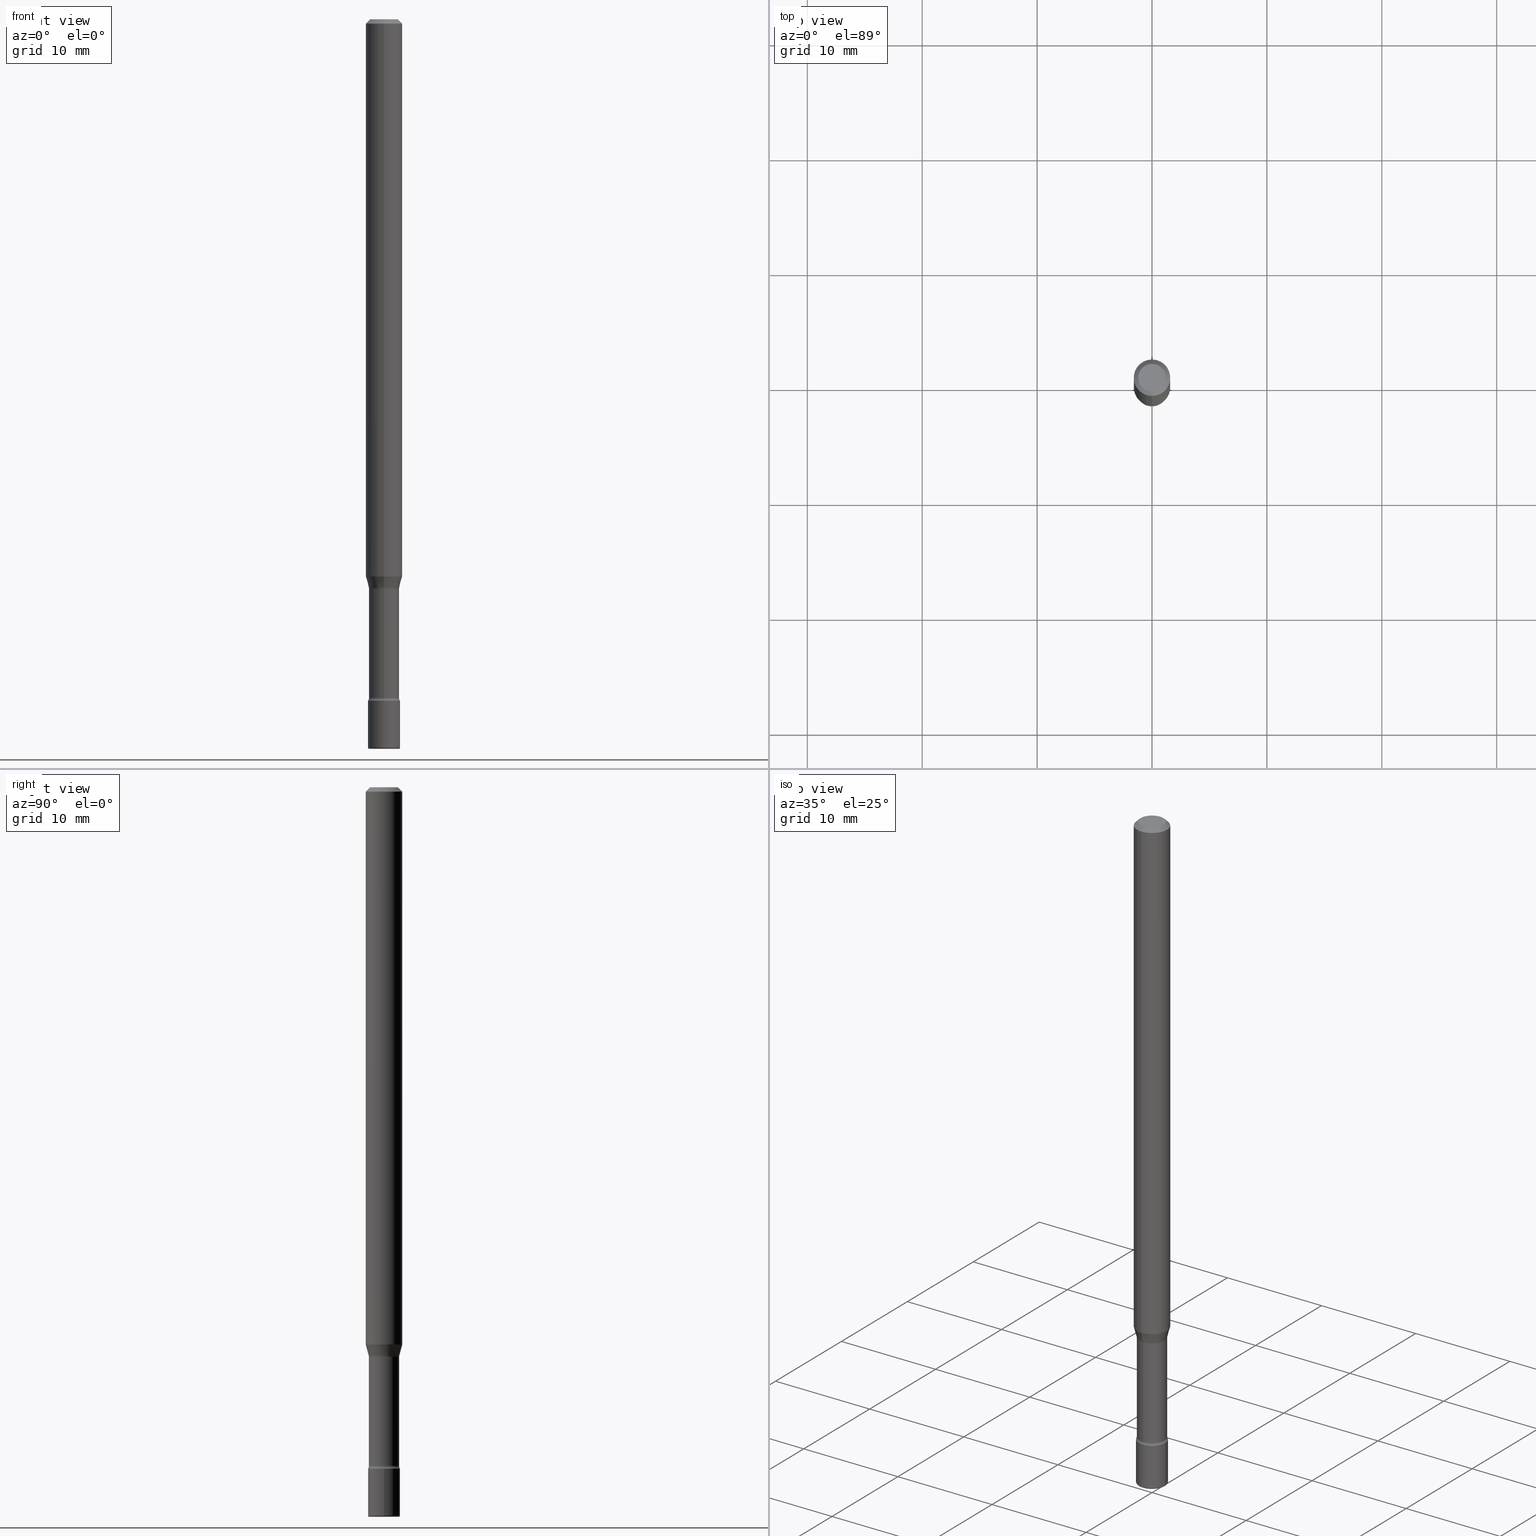
[diagram: canonical four-view strip — front | top / right | iso, engineering-drawing reading convention]
A machine part, canonical four-view strip (front | top / right | iso — engineering-drawing reading convention). The complete STEP part file that produces these views, byte-faithful:
ISO-10303-21;
HEADER;
FILE_DESCRIPTION (( 'STEP AP203' ),
    '1' );
FILE_NAME ('08968.STEP',
    '2024-03-06T20:13:01',
    ( '' ),
    ( '' ),
    'SwSTEP 2.0',
    'SolidWorks 2023',
    '' );
FILE_SCHEMA (( 'CONFIG_CONTROL_DESIGN' ));
ENDSEC;

DATA;
#1 = APPROVAL_ROLE ( '' ) ;
#2 = AXIS2_PLACEMENT_3D ( 'NONE', #156, #561, #392 ) ;
#3 = LINE ( 'NONE', #170, #68 ) ;
#4 = FACE_OUTER_BOUND ( 'NONE', #215, .T. ) ;
#5 = EDGE_LOOP ( 'NONE', ( #14, #91, #257, #425 ) ) ;
#6 = DIRECTION ( 'NONE',  ( -2.445385286950522456E-29, 3.491600943140732554E-15, 1.000000000000000000 ) ) ;
#7 = LOCAL_TIME ( 15, 13, 1.000000000000000000, #168 ) ;
#8 = CIRCLE ( 'NONE', #100, 0.05221111260566398821 ) ;
#9 = AXIS2_PLACEMENT_3D ( 'NONE', #540, #230, #54 ) ;
#10 = DIRECTION ( 'NONE',  ( 1.000000000000000000, -6.982962677686262766E-15, 0.000000000000000000 ) ) ;
#11 = DATE_TIME_ROLE ( 'creation_date' ) ;
#12 = ORIENTED_EDGE ( 'NONE', *, *, #491, .T. ) ;
#13 = FACE_OUTER_BOUND ( 'NONE', #120, .T. ) ;
#14 = ORIENTED_EDGE ( 'NONE', *, *, #437, .T. ) ;
#15 = DIRECTION ( 'NONE',  ( -2.445385286950522456E-29, 3.491600943140732554E-15, 1.000000000000000000 ) ) ;
#16 = APPROVAL_STATUS ( 'not_yet_approved' ) ;
#17 = EDGE_CURVE ( 'NONE', #362, #537, #193, .T. ) ;
#18 = AXIS2_PLACEMENT_3D ( 'NONE', #49, #355, #525 ) ;
#19 = DIRECTION ( 'NONE',  ( -6.982962677686266711E-15, -1.000000000000000000, 4.966996352116842287E-15 ) ) ;
#20 = DIRECTION ( 'NONE',  ( -6.982962677686265922E-15, -1.000000000000000000, 3.491600943140732160E-15 ) ) ;
#21 = CARTESIAN_POINT ( 'NONE',  ( 3.668077930425790463E-31, -5.237401414711108766E-17, -0.01500000000000002720 ) ) ;
#22 = CARTESIAN_POINT ( 'NONE',  ( -0.05000000000000000278, -8.355974572533597921E-15, -2.495000000000000107 ) ) ;
#23 = CARTESIAN_POINT ( 'NONE',  ( 5.687214798230907854E-29, -8.119835463774270932E-15, -2.325613307291702903 ) ) ;
#24 = DIRECTION ( 'NONE',  ( -2.445468806185136597E-29, 3.491481338843145583E-15, 1.000000000000000000 ) ) ;
#25 = AXIS2_PLACEMENT_3D ( 'NONE', #32, #440, #62 ) ;
#26 = LINE ( 'NONE', #71, #28 ) ;
#27 = ORIENTED_EDGE ( 'NONE', *, *, #86, .F. ) ;
#28 = VECTOR ( 'NONE', #236, 39.37007874015748143 ) ;
#29 = EDGE_LOOP ( 'NONE', ( #548, #210, #400, #493 ) ) ;
#30 = CARTESIAN_POINT ( 'NONE',  ( 0.000000000000000000, 0.000000000000000000, 0.000000000000000000 ) ) ;
#31 = DIRECTION ( 'NONE',  ( -6.982962677686265133E-15, -1.000000000000000000, 3.491600943140732554E-15 ) ) ;
#32 = CARTESIAN_POINT ( 'NONE',  ( 0.05000000000000000278, -9.060394074297961665E-15, -2.495000000000000107 ) ) ;
#33 =( GEOMETRIC_REPRESENTATION_CONTEXT ( 3 ) GLOBAL_UNCERTAINTY_ASSIGNED_CONTEXT ( ( #335 ) ) GLOBAL_UNIT_ASSIGNED_CONTEXT ( ( #512, #356, #161 ) ) REPRESENTATION_CONTEXT ( 'NONE', 'WORKASPACE' ) );
#34 = CARTESIAN_POINT ( 'NONE',  ( -4.287811248607203282E-16, -0.06250000000000005551, -0.01499999999999981036 ) ) ;
#35 = AXIS2_PLACEMENT_3D ( 'NONE', #462, #108, #20 ) ;
#36 = ORIENTED_EDGE ( 'NONE', *, *, #429, .F. ) ;
#37 = EDGE_LOOP ( 'NONE', ( #122, #342, #523, #219 ) ) ;
#38 = EDGE_LOOP ( 'NONE', ( #544, #567, #450, #441 ) ) ;
#39 = DIRECTION ( 'NONE',  ( -6.982962677686266711E-15, -1.000000000000000000, 5.284038672464726492E-15 ) ) ;
#40 = DATE_AND_TIME ( #212, #393 ) ;
#41 = EDGE_LOOP ( 'NONE', ( #169, #81 ) ) ;
#42 = ORIENTED_EDGE ( 'NONE', *, *, #258, .F. ) ;
#43 = EDGE_CURVE ( 'NONE', #345, #301, #394, .T. ) ;
#44 = DIRECTION ( 'NONE',  ( -2.445385286950522456E-29, 3.491600943140732554E-15, 1.000000000000000000 ) ) ;
#45 = APPROVAL_STATUS ( 'not_yet_approved' ) ;
#46 = AXIS2_PLACEMENT_3D ( 'NONE', #390, #191, #326 ) ;
#47 = CIRCLE ( 'NONE', #453, 0.05500000000000000028 ) ;
#48 = ORIENTED_EDGE ( 'NONE', *, *, #232, .F. ) ;
#49 = CARTESIAN_POINT ( 'NONE',  ( 4.763836741489232116E-29, -6.801961616565831603E-15, -1.948092501787273001 ) ) ;
#50 = EDGE_CURVE ( 'NONE', #407, #481, #217, .T. ) ;
#51 = FACE_OUTER_BOUND ( 'NONE', #308, .T. ) ;
#52 = CIRCLE ( 'NONE', #165, 0.01500000000000004455 ) ;
#53 = AXIS2_PLACEMENT_3D ( 'NONE', #315, #55, #460 ) ;
#54 = DIRECTION ( 'NONE',  ( 1.000000000000000000, -6.982962677686262766E-15, 0.000000000000000000 ) ) ;
#55 = DIRECTION ( 'NONE',  ( -2.445468806185136597E-29, 3.491481338843145583E-15, 1.000000000000000000 ) ) ;
#56 = PRODUCT ( '08968', '08968', '', ( #478 ) ) ;
#57 = DIRECTION ( 'NONE',  ( -6.982962677686265922E-15, -1.000000000000000000, 3.491600943140732554E-15 ) ) ;
#58 = LINE ( 'NONE', #511, #235 ) ;
#59 = FACE_OUTER_BOUND ( 'NONE', #41, .T. ) ;
#60 = PLANE ( 'NONE',  #465 ) ;
#61 = CARTESIAN_POINT ( 'NONE',  ( 6.618967874996371320E-46, -9.462197470180014889E-32, -2.708350599300407887E-17 ) ) ;
#62 = DIRECTION ( 'NONE',  ( 1.000000000000000000, -6.982962677686075017E-15, 0.000000000000000000 ) ) ;
#63 = DIRECTION ( 'NONE',  ( -2.445385286950522456E-29, 3.491600943140732554E-15, 1.000000000000000000 ) ) ;
#64 = PRODUCT_DEFINITION_SHAPE ( 'NONE', 'NONE',  #549 ) ;
#65 = DIRECTION ( 'NONE',  ( -2.445385286950522456E-29, 3.491600943140732554E-15, 1.000000000000000000 ) ) ;
#66 = ORIENTED_EDGE ( 'NONE', *, *, #358, .T. ) ;
#67 = APPLICATION_PROTOCOL_DEFINITION ( 'international standard', 'config_control_design', 1994, #106 ) ;
#68 = VECTOR ( 'NONE', #352, 39.37007874015748143 ) ;
#69 = CC_DESIGN_DATE_AND_TIME_ASSIGNMENT ( #497, #456, ( #563 ) ) ;
#70 = PERSON ( 'UNSPECIFIED', 'UNSPECIFIED', 'UNSPECIFIED', ('UNSPECIFIED'), ('UNSPECIFIED'), ('UNSPECIFIED') ) ;
#71 = CARTESIAN_POINT ( 'NONE',  ( 4.440892098500625669E-16, 0.06250000000000000000, 2.598483399449503033E-16 ) ) ;
#72 = AXIS2_PLACEMENT_3D ( 'NONE', #268, #138, #366 ) ;
#73 = ADVANCED_FACE ( 'NONE', ( #516 ), #275, .T. ) ;
#74 = DIRECTION ( 'NONE',  ( -6.982962677686265922E-15, -1.000000000000000000, 4.370956789862821150E-15 ) ) ;
#75 = PERSON_AND_ORGANIZATION ( #70, #233 ) ;
#76 = ORIENTED_EDGE ( 'NONE', *, *, #232, .T. ) ;
#77 = ORIENTED_EDGE ( 'NONE', *, *, #17, .F. ) ;
#78 = APPROVAL_PERSON_ORGANIZATION ( #140, #492, #500 ) ;
#79 = CYLINDRICAL_SURFACE ( 'NONE', #155, 0.05169999999999998902 ) ;
#80 = PERSON_AND_ORGANIZATION ( #70, #233 ) ;
#81 = ORIENTED_EDGE ( 'NONE', *, *, #114, .F. ) ;
#82 =( LENGTH_UNIT ( ) NAMED_UNIT ( * ) SI_UNIT ( $, .METRE. ) );
#83 = ORIENTED_EDGE ( 'NONE', *, *, #43, .T. ) ;
#84 = FACE_OUTER_BOUND ( 'NONE', #37, .T. ) ;
#85 = ORIENTED_EDGE ( 'NONE', *, *, #305, .F. ) ;
#86 = EDGE_CURVE ( 'NONE', #407, #329, #58, .T. ) ;
#87 = CARTESIAN_POINT ( 'NONE',  ( 3.668077930425790463E-31, -5.237401414711108766E-17, -0.01500000000000002720 ) ) ;
#88 = AXIS2_PLACEMENT_3D ( 'NONE', #61, #238, #498 ) ;
#89 = DATE_AND_TIME ( #406, #118 ) ;
#90 = AXIS2_PLACEMENT_3D ( 'NONE', #149, #63, #160 ) ;
#91 = ORIENTED_EDGE ( 'NONE', *, *, #86, .T. ) ;
#92 = EDGE_CURVE ( 'NONE', #130, #444, #52, .T. ) ;
#93 = DIRECTION ( 'NONE',  ( -6.982962677686265133E-15, -1.000000000000000000, 3.491600943140732554E-15 ) ) ;
#94 = COORDINATED_UNIVERSAL_TIME_OFFSET ( 5, 0, .BEHIND. ) ;
#95 = EDGE_CURVE ( 'NONE', #130, #223, #499, .T. ) ;
#96 = CC_DESIGN_PERSON_AND_ORGANIZATION_ASSIGNMENT ( #80, #340, ( #549 ) ) ;
#97 = FACE_OUTER_BOUND ( 'NONE', #311, .T. ) ;
#98 = CONICAL_SURFACE ( 'NONE', #291, 0.05221111260566398821, 0.2617993877991500740 ) ;
#99 = ADVANCED_FACE ( 'NONE', ( #113 ), #60, .T. ) ;
#100 = AXIS2_PLACEMENT_3D ( 'NONE', #142, #182, #231 ) ;
#101 = AXIS2_PLACEMENT_3D ( 'NONE', #121, #111, #522 ) ;
#102 = CARTESIAN_POINT ( 'NONE',  ( 4.773493453202611400E-29, -6.815283544322211432E-15, -1.951974787463810923 ) ) ;
#103 = EDGE_CURVE ( 'NONE', #318, #407, #350, .T. ) ;
#104 = EDGE_LOOP ( 'NONE', ( #157, #411, #189, #395 ) ) ;
#105 = CARTESIAN_POINT ( 'NONE',  ( 0.05500000000000000028, -3.840629472727446888E-16, 2.681897226687764826E-30 ) ) ;
#106 = APPLICATION_CONTEXT ( 'configuration controlled 3d designs of mechanical parts and assemblies' ) ;
#107 = CARTESIAN_POINT ( 'NONE',  ( 4.440892098501093562E-16, 0.06249999999999334560, -1.909693851278256416 ) ) ;
#108 = DIRECTION ( 'NONE',  ( -2.445385286950522456E-29, 3.491600943140732554E-15, 1.000000000000000000 ) ) ;
#109 = DIRECTION ( 'NONE',  ( -2.445385286950522456E-29, 3.491600943140732554E-15, 1.000000000000000000 ) ) ;
#110 = DIRECTION ( 'NONE',  ( -2.445468806185136877E-29, 3.491481338843145188E-15, 1.000000000000000000 ) ) ;
#111 = DIRECTION ( 'NONE',  ( 2.445385286950522176E-29, -3.491600943140732554E-15, -1.000000000000000000 ) ) ;
#112 = PERSON_AND_ORGANIZATION_ROLE ( 'design_supplier' ) ;
#113 = FACE_OUTER_BOUND ( 'NONE', #259, .T. ) ;
#114 = EDGE_CURVE ( 'NONE', #318, #570, #154, .T. ) ;
#115 = CARTESIAN_POINT ( 'NONE',  ( 5.709974645029469894E-29, -8.152888202233611695E-15, -2.334999999999999964 ) ) ;
#116 = DIRECTION ( 'NONE',  ( 1.000000000000000000, -6.982962677686279332E-15, 0.000000000000000000 ) ) ;
#117 = AXIS2_PLACEMENT_3D ( 'NONE', #426, #201, #391 ) ;
#118 = LOCAL_TIME ( 15, 13, 1.000000000000000000, #532 ) ;
#119 = FACE_OUTER_BOUND ( 'NONE', #280, .T. ) ;
#120 = EDGE_LOOP ( 'NONE', ( #469, #300, #373, #77 ) ) ;
#121 = CARTESIAN_POINT ( 'NONE',  ( 3.316907271900975110E-16, 0.04749999999999998668, 5.964390164993622742E-17 ) ) ;
#122 = ORIENTED_EDGE ( 'NONE', *, *, #466, .F. ) ;
#123 = DIRECTION ( 'NONE',  ( -6.982962677686265922E-15, -1.000000000000000000, 3.483106191921935554E-15 ) ) ;
#124 = VERTEX_POINT ( 'NONE', #471 ) ;
#125 = AXIS2_PLACEMENT_3D ( 'NONE', #313, #6, #19 ) ;
#126 = CIRCLE ( 'NONE', #88, 0.04749999999999998668 ) ;
#127 = CIRCLE ( 'NONE', #269, 0.05500000000000000028 ) ;
#128 = EDGE_LOOP ( 'NONE', ( #172, #183, #297, #495 ) ) ;
#129 = PRODUCT_RELATED_PRODUCT_CATEGORY ( 'detail', '', ( #56 ) ) ;
#130 = VERTEX_POINT ( 'NONE', #181 ) ;
#131 = PERSON_AND_ORGANIZATION_ROLE ( 'classification_officer' ) ;
#132 = ORIENTED_EDGE ( 'NONE', *, *, #437, .F. ) ;
#133 = ADVANCED_FACE ( 'NONE', ( #188 ), #208, .T. ) ;
#134 = APPROVAL_STATUS ( 'not_yet_approved' ) ;
#135 = AXIS2_PLACEMENT_3D ( 'NONE', #196, #467, #384 ) ;
#136 = ORIENTED_EDGE ( 'NONE', *, *, #568, .F. ) ;
#137 = CARTESIAN_POINT ( 'NONE',  ( 4.773493453202611400E-29, -6.815283544322211432E-15, -1.951974787463810923 ) ) ;
#138 = DIRECTION ( 'NONE',  ( -1.000000000000000000, 6.982962677686265922E-15, -4.883557194083112340E-29 ) ) ;
#139 = ADVANCED_FACE ( 'NONE', ( #13 ), #553, .T. ) ;
#140 = PERSON_AND_ORGANIZATION ( #70, #233 ) ;
#141 = ORIENTED_EDGE ( 'NONE', *, *, #247, .T. ) ;
#142 = CARTESIAN_POINT ( 'NONE',  ( 4.763836741489232116E-29, -6.801961616565831603E-15, -1.948092501787273001 ) ) ;
#143 = CIRCLE ( 'NONE', #472, 0.05169999999999998902 ) ;
#144 = AXIS2_PLACEMENT_3D ( 'NONE', #115, #109, #327 ) ;
#145 = DIRECTION ( 'NONE',  ( -2.445385286950522176E-29, 3.491600943140732554E-15, 1.000000000000000000 ) ) ;
#146 = ADVANCED_FACE ( 'NONE', ( #51 ), #383, .F. ) ;
#147 = FACE_OUTER_BOUND ( 'NONE', #128, .T. ) ;
#148 = DIRECTION ( 'NONE',  ( 1.000000000000000000, -6.982962677686273810E-15, 4.883557194083115143E-29 ) ) ;
#149 = CARTESIAN_POINT ( 'NONE',  ( 4.773330425762376374E-29, -6.815517008895574721E-15, -1.951974787463810923 ) ) ;
#150 = EDGE_CURVE ( 'NONE', #222, #124, #8, .T. ) ;
#151 = DIRECTION ( 'NONE',  ( -1.807323732225328562E-15, -0.2588190451025179639, 0.9659258262890690894 ) ) ;
#152 = DIRECTION ( 'NONE',  ( -2.445468806185136597E-29, 3.491481338843145583E-15, 1.000000000000000000 ) ) ;
#153 = ORIENTED_EDGE ( 'NONE', *, *, #571, .T. ) ;
#154 = CIRCLE ( 'NONE', #226, 0.05000000000000000278 ) ;
#155 = AXIS2_PLACEMENT_3D ( 'NONE', #256, #569, #348 ) ;
#156 = CARTESIAN_POINT ( 'NONE',  ( 4.763836741489232116E-29, -6.801961616565831603E-15, -1.948092501787273001 ) ) ;
#157 = ORIENTED_EDGE ( 'NONE', *, *, #103, .F. ) ;
#158 = DIRECTION ( 'NONE',  ( 4.937700262164548831E-15, 0.7071067811865452413, -0.7071067811865497932 ) ) ;
#159 = CARTESIAN_POINT ( 'NONE',  ( 3.840629472727447874E-16, 0.04749999999999998668, -1.929345507921888436E-16 ) ) ;
#160 = DIRECTION ( 'NONE',  ( -6.982962677686266711E-15, -1.000000000000000000, 5.284038672464726492E-15 ) ) ;
#161 =( NAMED_UNIT ( * ) SI_UNIT ( $, .STERADIAN. ) SOLID_ANGLE_UNIT ( ) );
#162 = CYLINDRICAL_SURFACE ( 'NONE', #504, 0.05500000000000000028 ) ;
#163 = DATE_AND_TIME ( #347, #536 ) ;
#164 = VERTEX_POINT ( 'NONE', #276 ) ;
#165 = AXIS2_PLACEMENT_3D ( 'NONE', #234, #277, #240 ) ;
#166 = CARTESIAN_POINT ( 'NONE',  ( 4.773330425762376374E-29, -6.815517008895574721E-15, -1.951974787463810923 ) ) ;
#167 = DIRECTION ( 'NONE',  ( 1.000000000000000000, -6.982962677686266711E-15, 4.876176775795935793E-29 ) ) ;
#168 = COORDINATED_UNIVERSAL_TIME_OFFSET ( 5, 0, .BEHIND. ) ;
#169 = ORIENTED_EDGE ( 'NONE', *, *, #306, .F. ) ;
#170 = CARTESIAN_POINT ( 'NONE',  ( 3.673505943879716688E-16, 0.05169999999999998902, 2.975576301308702297E-16 ) ) ;
#171 = DESIGN_CONTEXT ( 'detailed design', #524, 'design' ) ;
#172 = ORIENTED_EDGE ( 'NONE', *, *, #491, .F. ) ;
#173 = CIRCLE ( 'NONE', #572, 0.06250000000000000000 ) ;
#174 = LINE ( 'NONE', #34, #197 ) ;
#175 = AXIS2_PLACEMENT_3D ( 'NONE', #166, #198, #248 ) ;
#176 = DIRECTION ( 'NONE',  ( -6.982962677686265922E-15, -1.000000000000000000, 5.232311393739396883E-15 ) ) ;
#177 = EDGE_CURVE ( 'NONE', #362, #398, #485, .T. ) ;
#178 = FACE_OUTER_BOUND ( 'NONE', #5, .T. ) ;
#179 = DATE_AND_TIME ( #421, #403 ) ;
#180 = CARTESIAN_POINT ( 'NONE',  ( 5.710169662442294357E-29, -8.152608926198745099E-15, -2.334999999999999964 ) ) ;
#181 = CARTESIAN_POINT ( 'NONE',  ( -3.610191704363230083E-16, -0.05170000000000810753, -2.325613307291702458 ) ) ;
#182 = DIRECTION ( 'NONE',  ( -2.445385286950522456E-29, 3.491600943140732554E-15, 1.000000000000000000 ) ) ;
#183 = ORIENTED_EDGE ( 'NONE', *, *, #496, .T. ) ;
#184 = FACE_OUTER_BOUND ( 'NONE', #533, .T. ) ;
#185 = DIMENSIONAL_EXPONENTS ( 1.000000000000000000, 0.000000000000000000, 0.000000000000000000, 0.000000000000000000, 0.000000000000000000, 0.000000000000000000, 0.000000000000000000 ) ;
#186 = AXIS2_PLACEMENT_3D ( 'NONE', #445, #442, #489 ) ;
#187 = ORIENTED_EDGE ( 'NONE', *, *, #306, .T. ) ;
#188 = FACE_OUTER_BOUND ( 'NONE', #104, .T. ) ;
#189 = ORIENTED_EDGE ( 'NONE', *, *, #354, .T. ) ;
#190 = ADVANCED_FACE ( 'NONE', ( #97 ), #457, .T. ) ;
#191 = DIRECTION ( 'NONE',  ( -2.445385286950522456E-29, 3.491600943140732554E-15, 1.000000000000000000 ) ) ;
#192 = DIRECTION ( 'NONE',  ( -6.982962677686265922E-15, -1.000000000000000000, 3.483106191921935554E-15 ) ) ;
#193 = LINE ( 'NONE', #320, #414 ) ;
#194 = CARTESIAN_POINT ( 'NONE',  ( 4.739320047520345174E-16, 0.06669999999999319529, -1.951974787463811367 ) ) ;
#195 = CIRCLE ( 'NONE', #436, 0.01500000000000004455 ) ;
#196 = CARTESIAN_POINT ( 'NONE',  ( 5.687020564787474071E-29, -8.120113617120347933E-15, -2.325613307291702903 ) ) ;
#197 = VECTOR ( 'NONE', #304, 39.37007874015748143 ) ;
#198 = DIRECTION ( 'NONE',  ( -2.445385286950522456E-29, 3.491600943140732554E-15, 1.000000000000000000 ) ) ;
#199 = VERTEX_POINT ( 'NONE', #107 ) ;
#200 = APPROVAL_DATE_TIME ( #89, #492 ) ;
#201 = DIRECTION ( 'NONE',  ( 2.438088387897960049E-29, -3.491481338843145188E-15, -1.000000000000000000 ) ) ;
#202 = ADVANCED_FACE ( 'NONE', ( #464 ), #476, .F. ) ;
#203 = DIRECTION ( 'NONE',  ( -2.445385286950522456E-29, 3.491600943140732554E-15, 1.000000000000000000 ) ) ;
#204 = CC_DESIGN_PERSON_AND_ORGANIZATION_ASSIGNMENT ( #515, #112, ( #552 ) ) ;
#205 = PERSON_AND_ORGANIZATION_ROLE ( 'creator' ) ;
#206 = AXIS2_PLACEMENT_3D ( 'NONE', #401, #44, #214 ) ;
#207 = EDGE_LOOP ( 'NONE', ( #263, #12, #294, #565 ) ) ;
#208 = TOROIDAL_SURFACE ( 'NONE', #538, 0.05000000000000000278, 0.004999999999999767651 ) ;
#209 = DIRECTION ( 'NONE',  ( 2.445385286950522456E-29, -3.491600943140732554E-15, -1.000000000000000000 ) ) ;
#210 = ORIENTED_EDGE ( 'NONE', *, *, #358, .F. ) ;
#211 = CARTESIAN_POINT ( 'NONE',  ( 6.101444671431915719E-29, -8.711245940413648329E-15, -2.495000000000000107 ) ) ;
#212 = CALENDAR_DATE ( 2024, 6, 3 ) ;
#213 = ORIENTED_EDGE ( 'NONE', *, *, #50, .T. ) ;
#214 = DIRECTION ( 'NONE',  ( -6.982962677686265922E-15, -1.000000000000000000, 4.370956789862821150E-15 ) ) ;
#215 = EDGE_LOOP ( 'NONE', ( #435, #344, #251, #284 ) ) ;
#216 = TOROIDAL_SURFACE ( 'NONE', #243, 0.06670000000000005091, 0.01500000000000004975 ) ;
#217 = CIRCLE ( 'NONE', #422, 0.05500000000000000028 ) ;
#218 = AXIS2_PLACEMENT_3D ( 'NONE', #296, #203, #74 ) ;
#219 = ORIENTED_EDGE ( 'NONE', *, *, #483, .T. ) ;
#220 = CARTESIAN_POINT ( 'NONE',  ( 3.668077930425790463E-31, -5.237401414711108766E-17, -0.01500000000000002720 ) ) ;
#221 = PERSON_AND_ORGANIZATION ( #70, #233 ) ;
#222 = VERTEX_POINT ( 'NONE', #501 ) ;
#223 = VERTEX_POINT ( 'NONE', #412 ) ;
#224 = DIRECTION ( 'NONE',  ( -2.445385286950522456E-29, 3.491600943140732554E-15, 1.000000000000000000 ) ) ;
#225 = DIRECTION ( 'NONE',  ( -2.445468806185136877E-29, 3.491481338843145188E-15, 1.000000000000000000 ) ) ;
#226 = AXIS2_PLACEMENT_3D ( 'NONE', #324, #24, #556 ) ;
#227 = CIRCLE ( 'NONE', #529, 0.01500000000000002720 ) ;
#228 = CARTESIAN_POINT ( 'NONE',  ( 3.668077930425790463E-31, -5.237401414711108766E-17, -0.01500000000000002720 ) ) ;
#229 = EDGE_CURVE ( 'NONE', #124, #301, #385, .T. ) ;
#230 = DIRECTION ( 'NONE',  ( -2.445468806185136597E-29, 3.491481338843145583E-15, 1.000000000000000000 ) ) ;
#231 = DIRECTION ( 'NONE',  ( -6.982962677686265922E-15, -1.000000000000000000, 5.232311393739396883E-15 ) ) ;
#232 = EDGE_CURVE ( 'NONE', #397, #444, #287, .T. ) ;
#233 = ORGANIZATION ( 'UNSPECIFIED', 'UNSPECIFIED', '' ) ;
#234 = CARTESIAN_POINT ( 'NONE',  ( -4.657636106016173147E-16, -0.06670000000000816942, -2.325613307291702458 ) ) ;
#235 = VECTOR ( 'NONE', #110, 39.37007874015748143 ) ;
#236 = DIRECTION ( 'NONE',  ( -2.445385286950522456E-29, 3.491600943140732554E-15, 1.000000000000000000 ) ) ;
#237 = CARTESIAN_POINT ( 'NONE',  ( 5.710169662442294357E-29, -8.152608926198745099E-15, -2.334999999999999964 ) ) ;
#238 = DIRECTION ( 'NONE',  ( -2.445385286950522456E-29, 3.491600943140732554E-15, 1.000000000000000000 ) ) ;
#239 = DIRECTION ( 'NONE',  ( -2.445468806185136597E-29, 3.491481338843145583E-15, 1.000000000000000000 ) ) ;
#240 = DIRECTION ( 'NONE',  ( -6.982962677686268288E-15, -1.000000000000000000, 0.000000000000000000 ) ) ;
#241 = ADVANCED_BREP_SHAPE_REPRESENTATION ( '08968', ( #535, #332, #463 ), #33 ) ;
#242 = CARTESIAN_POINT ( 'NONE',  ( 3.907985046681124445E-16, 0.05499999999999189565, -2.335000000000000409 ) ) ;
#243 = AXIS2_PLACEMENT_3D ( 'NONE', #23, #473, #31 ) ;
#244 = EDGE_LOOP ( 'NONE', ( #271, #153 ) ) ;
#245 = CARTESIAN_POINT ( 'NONE',  ( 4.440892098501096520E-16, 0.06249999999999995837, -0.01500000000000024578 ) ) ;
#246 = AXIS2_PLACEMENT_3D ( 'NONE', #545, #145, #57 ) ;
#247 = EDGE_CURVE ( 'NONE', #481, #559, #274, .T. ) ;
#248 = DIRECTION ( 'NONE',  ( -6.982962677686266711E-15, -1.000000000000000000, 5.284038672464726492E-15 ) ) ;
#249 = CARTESIAN_POINT ( 'NONE',  ( -3.610191704363322281E-16, -0.05170000000000680995, -1.951974787463810701 ) ) ;
#250 = COORDINATED_UNIVERSAL_TIME_OFFSET ( 5, 0, .BEHIND. ) ;
#251 = ORIENTED_EDGE ( 'NONE', *, *, #92, .T. ) ;
#252 = EDGE_CURVE ( 'NONE', #559, #329, #127, .T. ) ;
#253 = ADVANCED_FACE ( 'NONE', ( #363 ), #317, .T. ) ;
#254 = VECTOR ( 'NONE', #281, 39.37007874015748143 ) ;
#255 = ORIENTED_EDGE ( 'NONE', *, *, #354, .F. ) ;
#256 = CARTESIAN_POINT ( 'NONE',  ( -1.169113584055446105E-44, 1.669184350826100908E-30, 4.780733988912460139E-16 ) ) ;
#257 = ORIENTED_EDGE ( 'NONE', *, *, #252, .F. ) ;
#258 = EDGE_CURVE ( 'NONE', #329, #559, #458, .T. ) ;
#259 = EDGE_LOOP ( 'NONE', ( #527, #557 ) ) ;
#260 = CYLINDRICAL_SURFACE ( 'NONE', #402, 0.05500000000000000028 ) ;
#261 = ORIENTED_EDGE ( 'NONE', *, *, #410, .T. ) ;
#262 = VERTEX_POINT ( 'NONE', #461 ) ;
#263 = ORIENTED_EDGE ( 'NONE', *, *, #95, .T. ) ;
#264 = CC_DESIGN_APPROVAL ( #492, ( #552 ) ) ;
#265 = CARTESIAN_POINT ( 'NONE',  ( 0.000000000000000000, 0.000000000000000000, 0.000000000000000000 ) ) ;
#266 = DIRECTION ( 'NONE',  ( -6.982962677686265133E-15, -1.000000000000000000, 3.491600943140732554E-15 ) ) ;
#267 = CIRCLE ( 'NONE', #25, 0.004999999999999767651 ) ;
#268 = CARTESIAN_POINT ( 'NONE',  ( -4.657636106016261894E-16, -0.06670000000000680940, -1.951974787463810701 ) ) ;
#269 = AXIS2_PLACEMENT_3D ( 'NONE', #180, #541, #10 ) ;
#270 = CC_DESIGN_PERSON_AND_ORGANIZATION_ASSIGNMENT ( #490, #131, ( #563 ) ) ;
#271 = ORIENTED_EDGE ( 'NONE', *, *, #177, .T. ) ;
#272 = DIRECTION ( 'NONE',  ( 2.445385286950522456E-29, -3.491600943140732554E-15, -1.000000000000000000 ) ) ;
#273 = EDGE_CURVE ( 'NONE', #223, #397, #195, .T. ) ;
#274 = LINE ( 'NONE', #105, #555 ) ;
#275 = CYLINDRICAL_SURFACE ( 'NONE', #35, 0.06250000000000000000 ) ;
#276 = CARTESIAN_POINT ( 'NONE',  ( -4.364351673553447815E-16, -0.06250000000000664746, -1.909693851278255972 ) ) ;
#277 = DIRECTION ( 'NONE',  ( -1.000000000000000000, 6.982962677686265922E-15, -4.883557194083112340E-29 ) ) ;
#278 = CARTESIAN_POINT ( 'NONE',  ( 0.05000000000000000278, -9.077851480992176700E-15, -2.499999999999999556 ) ) ;
#279 = CARTESIAN_POINT ( 'NONE',  ( 0.000000000000000000, 0.000000000000000000, 0.000000000000000000 ) ) ;
#280 = EDGE_LOOP ( 'NONE', ( #66, #454, #488, #136 ) ) ;
#281 = DIRECTION ( 'NONE',  ( -2.445385286950522456E-29, 3.491600943140732554E-15, 1.000000000000000000 ) ) ;
#282 = FACE_OUTER_BOUND ( 'NONE', #244, .T. ) ;
#283 = SECURITY_CLASSIFICATION_LEVEL ( 'unclassified' ) ;
#284 = ORIENTED_EDGE ( 'NONE', *, *, #359, .T. ) ;
#285 = FACE_OUTER_BOUND ( 'NONE', #562, .T. ) ;
#286 = PERSON_AND_ORGANIZATION_ROLE ( 'design_owner' ) ;
#287 = CIRCLE ( 'NONE', #125, 0.05500000000000000028 ) ;
#288 = DIRECTION ( 'NONE',  ( 1.000000000000000000, 0.000000000000000000, 0.000000000000000000 ) ) ;
#289 = AXIS2_PLACEMENT_3D ( 'NONE', #507, #15, #416 ) ;
#290 = CARTESIAN_POINT ( 'NONE',  ( 0.05500000000000000028, -8.536671873471490084E-15, -2.334999999999999964 ) ) ;
#291 = AXIS2_PLACEMENT_3D ( 'NONE', #292, #480, #176 ) ;
#292 = CARTESIAN_POINT ( 'NONE',  ( 4.763836741489232116E-29, -6.801961616565831603E-15, -1.948092501787273001 ) ) ;
#293 = PERSON_AND_ORGANIZATION ( #70, #233 ) ;
#294 = ORIENTED_EDGE ( 'NONE', *, *, #419, .F. ) ;
#295 = ADVANCED_FACE ( 'NONE', ( #184 ), #370, .F. ) ;
#296 = CARTESIAN_POINT ( 'NONE',  ( 4.669937246495726866E-29, -6.667888852233216880E-15, -1.909693851278256194 ) ) ;
#297 = ORIENTED_EDGE ( 'NONE', *, *, #546, .T. ) ;
#298 = FACE_OUTER_BOUND ( 'NONE', #207, .T. ) ;
#299 = EDGE_CURVE ( 'NONE', #222, #345, #227, .T. ) ;
#300 = ORIENTED_EDGE ( 'NONE', *, *, #466, .T. ) ;
#301 = VERTEX_POINT ( 'NONE', #249 ) ;
#302 = CLOSED_SHELL ( 'NONE', ( #486, #253, #99, #428, #133, #310 ) ) ;
#303 = CONICAL_SURFACE ( 'NONE', #18, 0.05221111260566398821, 0.2617993877991500740 ) ;
#304 = DIRECTION ( 'NONE',  ( -4.851104656540965064E-15, -0.7071067811865501263, -0.7071067811865449082 ) ) ;
#305 = EDGE_CURVE ( 'NONE', #222, #199, #550, .T. ) ;
#306 = EDGE_CURVE ( 'NONE', #570, #318, #487, .T. ) ;
#307 = CALENDAR_DATE ( 2024, 6, 3 ) ;
#308 = EDGE_LOOP ( 'NONE', ( #314, #365, #83, #319 ) ) ;
#309 = CC_DESIGN_APPROVAL ( #542, ( #563 ) ) ;
#310 = ADVANCED_FACE ( 'NONE', ( #331 ), #162, .T. ) ;
#311 = EDGE_LOOP ( 'NONE', ( #388, #261, #36, #368 ) ) ;
#312 = ADVANCED_FACE ( 'NONE', ( #282 ), #513, .F. ) ;
#313 = CARTESIAN_POINT ( 'NONE',  ( 5.709974645029469894E-29, -8.152888202233611695E-15, -2.334999999999999964 ) ) ;
#314 = ORIENTED_EDGE ( 'NONE', *, *, #150, .F. ) ;
#315 = CARTESIAN_POINT ( 'NONE',  ( 6.101444671431915719E-29, -8.711245940413648329E-15, -2.495000000000000107 ) ) ;
#316 = DIRECTION ( 'NONE',  ( -6.982962677686265133E-15, -1.000000000000000000, 3.491600943140732948E-15 ) ) ;
#317 = TOROIDAL_SURFACE ( 'NONE', #53, 0.05000000000000000278, 0.004999999999999767651 ) ;
#318 = VERTEX_POINT ( 'NONE', #322 ) ;
#319 = ORIENTED_EDGE ( 'NONE', *, *, #229, .F. ) ;
#320 = CARTESIAN_POINT ( 'NONE',  ( 4.364351673553919652E-16, 0.06249999999999995143, -0.01500000000000024578 ) ) ;
#321 = CARTESIAN_POINT ( 'NONE',  ( -3.610191704363799049E-16, -0.05169999999999998902, 6.585891676516218968E-16 ) ) ;
#322 = CARTESIAN_POINT ( 'NONE',  ( -0.05000000000000000278, -8.346939707486704101E-15, -2.499999999999999556 ) ) ;
#323 = CC_DESIGN_APPROVAL ( #451, ( #549 ) ) ;
#324 = CARTESIAN_POINT ( 'NONE',  ( 6.113672015462840371E-29, -8.728703347107863365E-15, -2.499999999999999556 ) ) ;
#325 = CIRCLE ( 'NONE', #2, 0.05221111260566398821 ) ;
#326 = DIRECTION ( 'NONE',  ( -6.982962677686266711E-15, -1.000000000000000000, 3.491600943140732948E-15 ) ) ;
#327 = DIRECTION ( 'NONE',  ( -6.982962677686266711E-15, -1.000000000000000000, 4.966996352116842287E-15 ) ) ;
#328 = EDGE_LOOP ( 'NONE', ( #187, #482, #132, #255 ) ) ;
#329 = VERTEX_POINT ( 'NONE', #337 ) ;
#330 = CYLINDRICAL_SURFACE ( 'NONE', #46, 0.05169999999999998902 ) ;
#331 = FACE_OUTER_BOUND ( 'NONE', #446, .T. ) ;
#332 = MANIFOLD_SOLID_BREP ( 'Body-Move/Copy2[2]', #341 ) ;
#333 = EDGE_LOOP ( 'NONE', ( #85, #375, #520, #364 ) ) ;
#334 = COORDINATED_UNIVERSAL_TIME_OFFSET ( 5, 0, .BEHIND. ) ;
#335 = UNCERTAINTY_MEASURE_WITH_UNIT (LENGTH_MEASURE( 1.000000000000000082E-05 ), #512, 'distance_accuracy_value', 'NONE');
#336 = DIRECTION ( 'NONE',  ( 0.000000000000000000, 0.000000000000000000, 1.000000000000000000 ) ) ;
#337 = CARTESIAN_POINT ( 'NONE',  ( -0.05500000000000000028, -8.041128928638142054E-15, -2.334999999999999964 ) ) ;
#338 = ORIENTED_EDGE ( 'NONE', *, *, #92, .F. ) ;
#339 = AXIS2_PLACEMENT_3D ( 'NONE', #137, #224, #93 ) ;
#340 = PERSON_AND_ORGANIZATION_ROLE ( 'creator' ) ;
#341 = CLOSED_SHELL ( 'NONE', ( #146, #514, #376, #139, #190, #431, #502, #73, #479, #312, #295, #448, #526, #202 ) ) ;
#342 = ORIENTED_EDGE ( 'NONE', *, *, #177, .F. ) ;
#343 = CARTESIAN_POINT ( 'NONE',  ( 3.709822678791189595E-16, 0.05221111260565718115, -1.948092501787273445 ) ) ;
#344 = ORIENTED_EDGE ( 'NONE', *, *, #95, .F. ) ;
#345 = VERTEX_POINT ( 'NONE', #509 ) ;
#346 = CARTESIAN_POINT ( 'NONE',  ( 5.687020564787474071E-29, -8.120113617120347933E-15, -2.325613307291702903 ) ) ;
#347 = CALENDAR_DATE ( 2024, 6, 3 ) ;
#348 = DIRECTION ( 'NONE',  ( -6.982962677686266711E-15, -1.000000000000000000, 3.491600943140732948E-15 ) ) ;
#349 = AXIS2_PLACEMENT_3D ( 'NONE', #21, #519, #192 ) ;
#350 = CIRCLE ( 'NONE', #510, 0.004999999999999767651 ) ;
#351 = CONICAL_SURFACE ( 'NONE', #372, 0.06250000000000000000, 0.7853981633974485010 ) ;
#352 = DIRECTION ( 'NONE',  ( -2.445385286950522456E-29, 3.491600943140732554E-15, 1.000000000000000000 ) ) ;
#353 = ORIENTED_EDGE ( 'NONE', *, *, #496, .F. ) ;
#354 = EDGE_CURVE ( 'NONE', #570, #481, #267, .T. ) ;
#355 = DIRECTION ( 'NONE',  ( -2.445385286950522456E-29, 3.491600943140732554E-15, 1.000000000000000000 ) ) ;
#356 =( NAMED_UNIT ( * ) PLANE_ANGLE_UNIT ( ) SI_UNIT ( $, .RADIAN. ) );
#357 = APPROVAL_DATE_TIME ( #179, #542 ) ;
#358 = EDGE_CURVE ( 'NONE', #124, #222, #325, .T. ) ;
#359 = EDGE_CURVE ( 'NONE', #444, #397, #405, .T. ) ;
#360 = AXIS2_PLACEMENT_3D ( 'NONE', #102, #503, #266 ) ;
#361 = DIRECTION ( 'NONE',  ( -2.445468806185136597E-29, 3.491481338843145583E-15, 1.000000000000000000 ) ) ;
#362 = VERTEX_POINT ( 'NONE', #159 ) ;
#363 = FACE_OUTER_BOUND ( 'NONE', #328, .T. ) ;
#364 = ORIENTED_EDGE ( 'NONE', *, *, #423, .F. ) ;
#365 = ORIENTED_EDGE ( 'NONE', *, *, #299, .T. ) ;
#366 = DIRECTION ( 'NONE',  ( -6.982962677686267499E-15, -1.000000000000000000, 0.000000000000000000 ) ) ;
#367 = CC_DESIGN_PERSON_AND_ORGANIZATION_ASSIGNMENT ( #293, #286, ( #56 ) ) ;
#368 = ORIENTED_EDGE ( 'NONE', *, *, #380, .F. ) ;
#369 = CIRCLE ( 'NONE', #218, 0.06250000000000000000 ) ;
#370 = PLANE ( 'NONE',  #246 ) ;
#371 = APPROVAL_ROLE ( '' ) ;
#372 = AXIS2_PLACEMENT_3D ( 'NONE', #87, #209, #452 ) ;
#373 = ORIENTED_EDGE ( 'NONE', *, *, #429, .T. ) ;
#374 = DIRECTION ( 'NONE',  ( -2.445385286950522456E-29, 3.491600943140732554E-15, 1.000000000000000000 ) ) ;
#375 = ORIENTED_EDGE ( 'NONE', *, *, #150, .T. ) ;
#376 = ADVANCED_FACE ( 'NONE', ( #285 ), #216, .F. ) ;
#377 = CARTESIAN_POINT ( 'NONE',  ( -3.645882506857789159E-16, -0.05221111260567078832, -1.948092501787272779 ) ) ;
#378 = DIRECTION ( 'NONE',  ( 7.105427357601001859E-15, 1.000000000000000000, 0.000000000000000000 ) ) ;
#379 = DIRECTION ( 'NONE',  ( 7.105427357601001859E-15, 1.000000000000000000, -3.491481338843145583E-15 ) ) ;
#380 = EDGE_CURVE ( 'NONE', #164, #262, #470, .T. ) ;
#381 = DIRECTION ( 'NONE',  ( 1.000000000000000000, -6.982962677686266711E-15, 4.876176775795935793E-29 ) ) ;
#382 = VECTOR ( 'NONE', #151, 39.37007874015748854 ) ;
#383 = TOROIDAL_SURFACE ( 'NONE', #360, 0.06669999999999999540, 0.01500000000000002373 ) ;
#384 = DIRECTION ( 'NONE',  ( -6.982962677686266711E-15, -1.000000000000000000, 5.284038672464726492E-15 ) ) ;
#385 = CIRCLE ( 'NONE', #72, 0.01500000000000002720 ) ;
#386 = CARTESIAN_POINT ( 'NONE',  ( -0.05499999999999988926, -8.320447435745593669E-15, -2.495000000000000107 ) ) ;
#387 = CC_DESIGN_PERSON_AND_ORGANIZATION_ASSIGNMENT ( #389, #205, ( #552 ) ) ;
#388 = ORIENTED_EDGE ( 'NONE', *, *, #521, .T. ) ;
#389 = PERSON_AND_ORGANIZATION ( #70, #233 ) ;
#390 = CARTESIAN_POINT ( 'NONE',  ( -1.169113584055446105E-44, 1.669184350826100908E-30, 4.780733988912460139E-16 ) ) ;
#391 = DIRECTION ( 'NONE',  ( -1.000000000000000000, 6.982962677686265922E-15, -4.876176775795935793E-29 ) ) ;
#392 = DIRECTION ( 'NONE',  ( -6.982962677686265922E-15, -1.000000000000000000, 5.232311393739396883E-15 ) ) ;
#393 = LOCAL_TIME ( 15, 13, 1.000000000000000000, #250 ) ;
#394 = CIRCLE ( 'NONE', #90, 0.05169999999999999596 ) ;
#395 = ORIENTED_EDGE ( 'NONE', *, *, #50, .F. ) ;
#396 = FACE_OUTER_BOUND ( 'NONE', #333, .T. ) ;
#397 = VERTEX_POINT ( 'NONE', #242 ) ;
#398 = VERTEX_POINT ( 'NONE', #433 ) ;
#399 = DIRECTION ( 'NONE',  ( -2.445468806185136597E-29, 3.491481338843145583E-15, 1.000000000000000000 ) ) ;
#400 = ORIENTED_EDGE ( 'NONE', *, *, #229, .T. ) ;
#401 = CARTESIAN_POINT ( 'NONE',  ( 4.669937246495726866E-29, -6.667888852233216880E-15, -1.909693851278256194 ) ) ;
#402 = AXIS2_PLACEMENT_3D ( 'NONE', #265, #566, #167 ) ;
#403 = LOCAL_TIME ( 15, 13, 1.000000000000000000, #94 ) ;
#404 = AXIS2_PLACEMENT_3D ( 'NONE', #420, #374, #316 ) ;
#405 = CIRCLE ( 'NONE', #144, 0.05500000000000000028 ) ;
#406 = CALENDAR_DATE ( 2024, 6, 3 ) ;
#407 = VERTEX_POINT ( 'NONE', #386 ) ;
#408 = DIRECTION ( 'NONE',  ( -2.445385286950522456E-29, 3.491600943140732554E-15, 1.000000000000000000 ) ) ;
#409 = LENGTH_MEASURE_WITH_UNIT ( LENGTH_MEASURE( 0.02539999999999999897 ), #82 );
#410 = EDGE_CURVE ( 'NONE', #199, #537, #26, .T. ) ;
#411 = ORIENTED_EDGE ( 'NONE', *, *, #114, .T. ) ;
#412 = CARTESIAN_POINT ( 'NONE',  ( 3.790745495280705543E-16, 0.05169999999999187051, -2.325613307291702903 ) ) ;
#413 = APPROVAL_PERSON_ORGANIZATION ( #221, #542, #371 ) ;
#414 = VECTOR ( 'NONE', #158, 39.37007874015748143 ) ;
#415 = CIRCLE ( 'NONE', #206, 0.06250000000000000000 ) ;
#416 = DIRECTION ( 'NONE',  ( -6.982962677686265922E-15, -1.000000000000000000, 3.491600943140732160E-15 ) ) ;
#417 = CARTESIAN_POINT ( 'NONE',  ( 4.739320047520439837E-16, 0.06669999999999193241, -2.325613307291702903 ) ) ;
#418 = DIRECTION ( 'NONE',  ( 7.105427357601001859E-15, 1.000000000000000000, 0.000000000000000000 ) ) ;
#419 = EDGE_CURVE ( 'NONE', #301, #345, #477, .T. ) ;
#420 = CARTESIAN_POINT ( 'NONE',  ( 6.618967874996371320E-46, -9.462197470180014889E-32, -2.708350599300407887E-17 ) ) ;
#421 = CALENDAR_DATE ( 2024, 6, 3 ) ;
#422 = AXIS2_PLACEMENT_3D ( 'NONE', #508, #518, #116 ) ;
#423 = EDGE_CURVE ( 'NONE', #199, #164, #369, .T. ) ;
#424 = CC_DESIGN_DATE_AND_TIME_ASSIGNMENT ( #40, #11, ( #549 ) ) ;
#425 = ORIENTED_EDGE ( 'NONE', *, *, #247, .F. ) ;
#426 = CARTESIAN_POINT ( 'NONE',  ( 3.491481338843744722E-16, 0.04999999999999128059, -2.500000000000000000 ) ) ;
#427 = DIRECTION ( 'NONE',  ( 1.000000000000000000, -6.982962677686265922E-15, 4.876176775795935793E-29 ) ) ;
#428 = ADVANCED_FACE ( 'NONE', ( #59 ), #438, .T. ) ;
#429 = EDGE_CURVE ( 'NONE', #262, #537, #505, .T. ) ;
#430 = DIRECTION ( 'NONE',  ( -2.438088387897960049E-29, 3.491481338843145188E-15, 1.000000000000000000 ) ) ;
#431 = ADVANCED_FACE ( 'NONE', ( #119 ), #98, .T. ) ;
#432 = TOROIDAL_SURFACE ( 'NONE', #186, 0.06670000000000005091, 0.01500000000000004975 ) ;
#433 = CARTESIAN_POINT ( 'NONE',  ( -3.773273898774339776E-16, -0.04749999999999998668, 1.387675388061806859E-16 ) ) ;
#434 = AXIS2_PLACEMENT_3D ( 'NONE', #228, #272, #539 ) ;
#435 = ORIENTED_EDGE ( 'NONE', *, *, #273, .F. ) ;
#436 = AXIS2_PLACEMENT_3D ( 'NONE', #417, #506, #418 ) ;
#437 = EDGE_CURVE ( 'NONE', #481, #407, #47, .T. ) ;
#438 = PLANE ( 'NONE',  #117 ) ;
#439 = LINE ( 'NONE', #377, #382 ) ;
#440 = DIRECTION ( 'NONE',  ( -6.982962677686266711E-15, -1.000000000000000000, 3.491481338843145583E-15 ) ) ;
#441 = ORIENTED_EDGE ( 'NONE', *, *, #483, .F. ) ;
#442 = DIRECTION ( 'NONE',  ( -2.445385286950522456E-29, 3.491600943140732554E-15, 1.000000000000000000 ) ) ;
#443 = CC_DESIGN_SECURITY_CLASSIFICATION ( #563, ( #552 ) ) ;
#444 = VERTEX_POINT ( 'NONE', #494 ) ;
#445 = CARTESIAN_POINT ( 'NONE',  ( 5.687214798230907854E-29, -8.119835463774270932E-15, -2.325613307291702903 ) ) ;
#446 = EDGE_LOOP ( 'NONE', ( #27, #213, #141, #42 ) ) ;
#447 = ORIENTED_EDGE ( 'NONE', *, *, #273, .T. ) ;
#448 = ADVANCED_FACE ( 'NONE', ( #4 ), #432, .F. ) ;
#449 = DIRECTION ( 'NONE',  ( -2.445385286950522456E-29, 3.491600943140732554E-15, 1.000000000000000000 ) ) ;
#450 = ORIENTED_EDGE ( 'NONE', *, *, #380, .T. ) ;
#451 = APPROVAL ( #45, 'UNSPECIFIED' ) ;
#452 = DIRECTION ( 'NONE',  ( 6.982962677686265922E-15, 1.000000000000000000, -3.483106191921935554E-15 ) ) ;
#453 = AXIS2_PLACEMENT_3D ( 'NONE', #211, #399, #455 ) ;
#454 = ORIENTED_EDGE ( 'NONE', *, *, #305, .T. ) ;
#455 = DIRECTION ( 'NONE',  ( 1.000000000000000000, -6.982962677686279332E-15, 0.000000000000000000 ) ) ;
#456 = DATE_TIME_ROLE ( 'classification_date' ) ;
#457 = CYLINDRICAL_SURFACE ( 'NONE', #289, 0.06250000000000000000 ) ;
#458 = CIRCLE ( 'NONE', #9, 0.05500000000000000028 ) ;
#459 = VECTOR ( 'NONE', #65, 39.37007874015748143 ) ;
#460 = DIRECTION ( 'NONE',  ( 1.000000000000000000, -6.982962677686273810E-15, 4.883557194083115143E-29 ) ) ;
#461 = CARTESIAN_POINT ( 'NONE',  ( -4.364351673553912750E-16, -0.06250000000000005551, -0.01499999999999981036 ) ) ;
#462 = CARTESIAN_POINT ( 'NONE',  ( -1.169113584055446105E-44, 1.669184350826100908E-30, 4.780733988912460139E-16 ) ) ;
#463 = AXIS2_PLACEMENT_3D ( 'NONE', #30, #336, #288 ) ;
#464 = FACE_OUTER_BOUND ( 'NONE', #29, .T. ) ;
#465 = AXIS2_PLACEMENT_3D ( 'NONE', #237, #430, #427 ) ;
#466 = EDGE_CURVE ( 'NONE', #398, #262, #174, .T. ) ;
#467 = DIRECTION ( 'NONE',  ( -2.445385286950522456E-29, 3.491600943140732554E-15, 1.000000000000000000 ) ) ;
#468 = CARTESIAN_POINT ( 'NONE',  ( -4.364351673553916201E-16, -0.06250000000000000000, 6.962984578375418232E-16 ) ) ;
#469 = ORIENTED_EDGE ( 'NONE', *, *, #571, .F. ) ;
#470 = LINE ( 'NONE', #468, #459 ) ;
#471 = CARTESIAN_POINT ( 'NONE',  ( -3.645882506857789159E-16, -0.05221111260567078832, -1.948092501787272779 ) ) ;
#472 = AXIS2_PLACEMENT_3D ( 'NONE', #346, #408, #39 ) ;
#473 = DIRECTION ( 'NONE',  ( -2.445385286950522456E-29, 3.491600943140732554E-15, 1.000000000000000000 ) ) ;
#474 = APPROVAL_PERSON_ORGANIZATION ( #75, #451, #1 ) ;
#475 = APPLICATION_PROTOCOL_DEFINITION ( 'international standard', 'config_control_design', 1994, #524 ) ;
#476 = TOROIDAL_SURFACE ( 'NONE', #339, 0.06669999999999999540, 0.01500000000000002373 ) ;
#477 = CIRCLE ( 'NONE', #175, 0.05169999999999999596 ) ;
#478 = MECHANICAL_CONTEXT ( 'NONE', #106, 'mechanical' ) ;
#479 = ADVANCED_FACE ( 'NONE', ( #84 ), #351, .T. ) ;
#480 = DIRECTION ( 'NONE',  ( -2.445385286950522456E-29, 3.491600943140732554E-15, 1.000000000000000000 ) ) ;
#481 = VERTEX_POINT ( 'NONE', #528 ) ;
#482 = ORIENTED_EDGE ( 'NONE', *, *, #103, .T. ) ;
#483 = EDGE_CURVE ( 'NONE', #537, #262, #173, .T. ) ;
#484 = APPROVAL_DATE_TIME ( #163, #451 ) ;
#485 = CIRCLE ( 'NONE', #404, 0.04749999999999998668 ) ;
#486 = ADVANCED_FACE ( 'NONE', ( #178 ), #260, .T. ) ;
#487 = CIRCLE ( 'NONE', #543, 0.05000000000000000278 ) ;
#488 = ORIENTED_EDGE ( 'NONE', *, *, #521, .F. ) ;
#489 = DIRECTION ( 'NONE',  ( -6.982962677686265133E-15, -1.000000000000000000, 3.491600943140732554E-15 ) ) ;
#490 = PERSON_AND_ORGANIZATION ( #70, #233 ) ;
#491 = EDGE_CURVE ( 'NONE', #223, #345, #3, .T. ) ;
#492 = APPROVAL ( #134, 'UNSPECIFIED' ) ;
#493 = ORIENTED_EDGE ( 'NONE', *, *, #419, .T. ) ;
#494 = CARTESIAN_POINT ( 'NONE',  ( -3.840629472726877429E-16, -0.05500000000000818817, -2.334999999999999964 ) ) ;
#495 = ORIENTED_EDGE ( 'NONE', *, *, #43, .F. ) ;
#496 = EDGE_CURVE ( 'NONE', #223, #130, #143, .T. ) ;
#497 = DATE_AND_TIME ( #307, #7 ) ;
#498 = DIRECTION ( 'NONE',  ( -6.982962677686265133E-15, -1.000000000000000000, 3.491600943140732948E-15 ) ) ;
#499 = CIRCLE ( 'NONE', #135, 0.05169999999999998902 ) ;
#500 = APPROVAL_ROLE ( '' ) ;
#501 = CARTESIAN_POINT ( 'NONE',  ( 4.075357388646141825E-16, 0.05221111260565718115, -1.948092501787273445 ) ) ;
#502 = ADVANCED_FACE ( 'NONE', ( #396 ), #303, .T. ) ;
#503 = DIRECTION ( 'NONE',  ( -2.445385286950522456E-29, 3.491600943140732554E-15, 1.000000000000000000 ) ) ;
#504 = AXIS2_PLACEMENT_3D ( 'NONE', #279, #152, #381 ) ;
#505 = CIRCLE ( 'NONE', #349, 0.06250000000000000000 ) ;
#506 = DIRECTION ( 'NONE',  ( 1.000000000000000000, -7.105427357601001070E-15, 4.926316973272284020E-29 ) ) ;
#507 = CARTESIAN_POINT ( 'NONE',  ( -1.169113584055446105E-44, 1.669184350826100908E-30, 4.780733988912460139E-16 ) ) ;
#508 = CARTESIAN_POINT ( 'NONE',  ( 6.101444671431915719E-29, -8.711245940413648329E-15, -2.495000000000000107 ) ) ;
#509 = CARTESIAN_POINT ( 'NONE',  ( 3.673505943880287133E-16, 0.05169999999999318890, -1.951974787463811367 ) ) ;
#510 = AXIS2_PLACEMENT_3D ( 'NONE', #22, #379, #551 ) ;
#511 = CARTESIAN_POINT ( 'NONE',  ( -0.05500000000000000028, 3.907985046680551042E-16, -2.705414299640198362E-30 ) ) ;
#512 =( CONVERSION_BASED_UNIT ( 'INCH', #409 ) LENGTH_UNIT ( ) NAMED_UNIT ( #185 ) );
#513 = PLANE ( 'NONE',  #101 ) ;
#514 = ADVANCED_FACE ( 'NONE', ( #298 ), #79, .T. ) ;
#515 = PERSON_AND_ORGANIZATION ( #70, #233 ) ;
#516 = FACE_OUTER_BOUND ( 'NONE', #38, .T. ) ;
#517 = DIRECTION ( 'NONE',  ( 1.839019923739598738E-15, 0.2588190451025247363, 0.9659258262890673130 ) ) ;
#518 = DIRECTION ( 'NONE',  ( -2.445468806185136597E-29, 3.491481338843145583E-15, 1.000000000000000000 ) ) ;
#519 = DIRECTION ( 'NONE',  ( -2.445385286950522456E-29, 3.491600943140732554E-15, 1.000000000000000000 ) ) ;
#520 = ORIENTED_EDGE ( 'NONE', *, *, #568, .T. ) ;
#521 = EDGE_CURVE ( 'NONE', #164, #199, #415, .T. ) ;
#522 = DIRECTION ( 'NONE',  ( 6.982962677686265922E-15, 1.000000000000000000, -3.491600943140732554E-15 ) ) ;
#523 = ORIENTED_EDGE ( 'NONE', *, *, #17, .T. ) ;
#524 = APPLICATION_CONTEXT ( 'configuration controlled 3d designs of mechanical parts and assemblies' ) ;
#525 = DIRECTION ( 'NONE',  ( -6.982962677686265922E-15, -1.000000000000000000, 5.232311393739396883E-15 ) ) ;
#526 = ADVANCED_FACE ( 'NONE', ( #147 ), #330, .T. ) ;
#527 = ORIENTED_EDGE ( 'NONE', *, *, #252, .T. ) ;
#528 = CARTESIAN_POINT ( 'NONE',  ( 0.05499999999999988926, -9.095308887686390158E-15, -2.495000000000000107 ) ) ;
#529 = AXIS2_PLACEMENT_3D ( 'NONE', #194, #558, #378 ) ;
#530 = ORIENTED_EDGE ( 'NONE', *, *, #359, .F. ) ;
#531 = VECTOR ( 'NONE', #517, 39.37007874015748854 ) ;
#532 = COORDINATED_UNIVERSAL_TIME_OFFSET ( 5, 0, .BEHIND. ) ;
#533 = EDGE_LOOP ( 'NONE', ( #530, #48 ) ) ;
#534 = SHAPE_DEFINITION_REPRESENTATION ( #64, #241 ) ;
#535 = MANIFOLD_SOLID_BREP ( 'Body-Move/Copy2[1]', #302 ) ;
#536 = LOCAL_TIME ( 15, 13, 1.000000000000000000, #334 ) ;
#537 = VERTEX_POINT ( 'NONE', #245 ) ;
#538 = AXIS2_PLACEMENT_3D ( 'NONE', #547, #361, #148 ) ;
#539 = DIRECTION ( 'NONE',  ( 6.982962677686265922E-15, 1.000000000000000000, -3.483106191921935554E-15 ) ) ;
#540 = CARTESIAN_POINT ( 'NONE',  ( 5.710169662442294357E-29, -8.152608926198745099E-15, -2.334999999999999964 ) ) ;
#541 = DIRECTION ( 'NONE',  ( -2.445468806185136597E-29, 3.491481338843145583E-15, 1.000000000000000000 ) ) ;
#542 = APPROVAL ( #16, 'UNSPECIFIED' ) ;
#543 = AXIS2_PLACEMENT_3D ( 'NONE', #564, #239, #554 ) ;
#544 = ORIENTED_EDGE ( 'NONE', *, *, #410, .F. ) ;
#545 = CARTESIAN_POINT ( 'NONE',  ( 3.840629472728017333E-16, 0.05499999999999184708, -2.335000000000000409 ) ) ;
#546 = EDGE_CURVE ( 'NONE', #130, #301, #560, .T. ) ;
#547 = CARTESIAN_POINT ( 'NONE',  ( 6.101444671431915719E-29, -8.711245940413648329E-15, -2.495000000000000107 ) ) ;
#548 = ORIENTED_EDGE ( 'NONE', *, *, #299, .F. ) ;
#549 = PRODUCT_DEFINITION ( 'UNKNOWN', '', #552, #171 ) ;
#550 = LINE ( 'NONE', #343, #531 ) ;
#551 = DIRECTION ( 'NONE',  ( -1.000000000000000000, 7.105427357601061812E-15, 0.000000000000000000 ) ) ;
#552 = PRODUCT_DEFINITION_FORMATION_WITH_SPECIFIED_SOURCE ( 'ANY', '', #56, .NOT_KNOWN. ) ;
#553 = CONICAL_SURFACE ( 'NONE', #434, 0.06250000000000000000, 0.7853981633974485010 ) ;
#554 = DIRECTION ( 'NONE',  ( 1.000000000000000000, -6.982962677686274599E-15, 0.000000000000000000 ) ) ;
#555 = VECTOR ( 'NONE', #225, 39.37007874015748143 ) ;
#556 = DIRECTION ( 'NONE',  ( 1.000000000000000000, -6.982962677686274599E-15, 0.000000000000000000 ) ) ;
#557 = ORIENTED_EDGE ( 'NONE', *, *, #258, .T. ) ;
#558 = DIRECTION ( 'NONE',  ( 1.000000000000000000, -7.105427357601001070E-15, 4.926316973272284020E-29 ) ) ;
#559 = VERTEX_POINT ( 'NONE', #290 ) ;
#560 = LINE ( 'NONE', #321, #254 ) ;
#561 = DIRECTION ( 'NONE',  ( -2.445385286950522456E-29, 3.491600943140732554E-15, 1.000000000000000000 ) ) ;
#562 = EDGE_LOOP ( 'NONE', ( #353, #447, #76, #338 ) ) ;
#563 = SECURITY_CLASSIFICATION ( '', '', #283 ) ;
#564 = CARTESIAN_POINT ( 'NONE',  ( 6.113672015462840371E-29, -8.728703347107863365E-15, -2.499999999999999556 ) ) ;
#565 = ORIENTED_EDGE ( 'NONE', *, *, #546, .F. ) ;
#566 = DIRECTION ( 'NONE',  ( -2.445468806185136597E-29, 3.491481338843145583E-15, 1.000000000000000000 ) ) ;
#567 = ORIENTED_EDGE ( 'NONE', *, *, #423, .T. ) ;
#568 = EDGE_CURVE ( 'NONE', #124, #164, #439, .T. ) ;
#569 = DIRECTION ( 'NONE',  ( -2.445385286950522456E-29, 3.491600943140732554E-15, 1.000000000000000000 ) ) ;
#570 = VERTEX_POINT ( 'NONE', #278 ) ;
#571 = EDGE_CURVE ( 'NONE', #398, #362, #126, .T. ) ;
#572 = AXIS2_PLACEMENT_3D ( 'NONE', #220, #449, #123 ) ;
ENDSEC;
END-ISO-10303-21;
